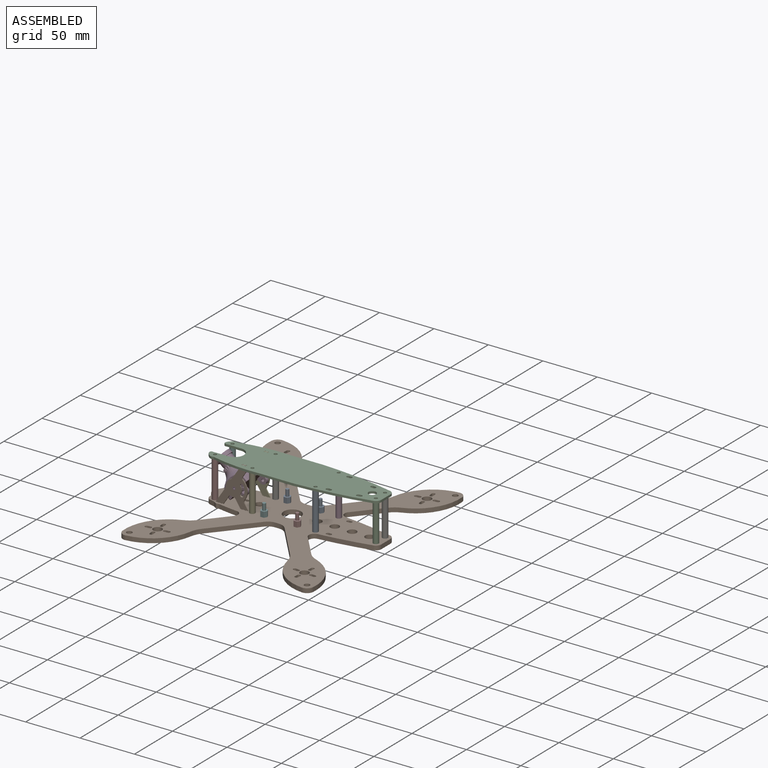
[diagram: assembled view]
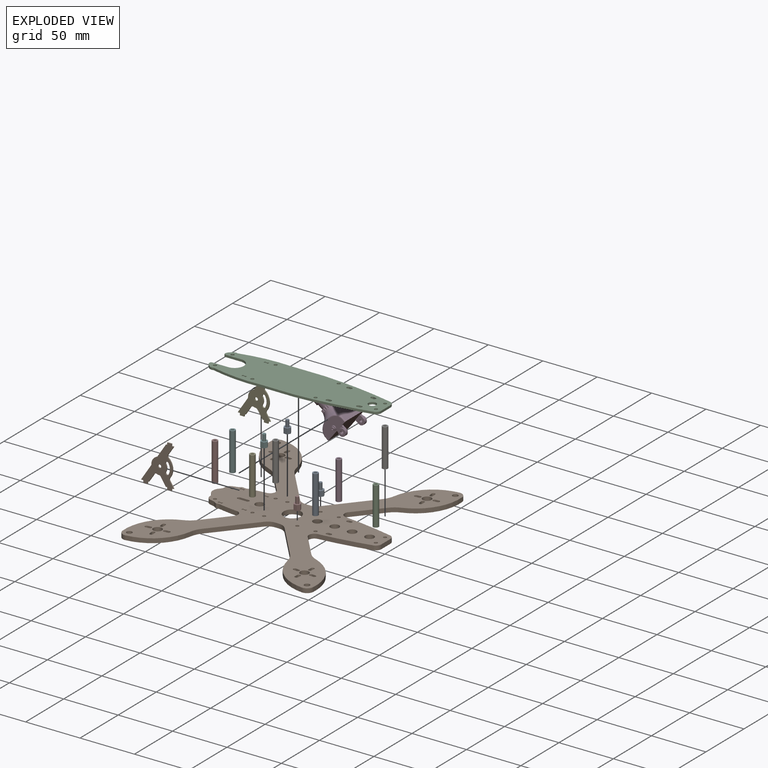
[diagram: exploded view]
GUIDED TOUR — MATED ASSEMBLY (Onshape document 0e64cf59f0e2e8e5c947b342, AutoMate assembly 0e64cf59f0e2e8e5c947b342_09d4eaabf75cbf27453308b6_e73a0a01578c468ebd3c7595_default)

This assembly has 17 components, labeled P0..P16 below (a component is one placed occurrence of a part; the same part can appear more than once), held together by 33 mates. A mate is a constraint between two components; its type names the relative motion it leaves free:
  CYLINDRICAL — leaves both rotation about and translation along the listed axis free,
  PLANAR — leaves sliding in the plane through the listed point (normal = the listed direction) and rotation about that normal free.
Axis/direction vectors are unit vectors and 'through' points are millimeter coordinates, both in the assembly's world frame.

MATES
  1. CYLINDRICAL "Cylindrical 3": P14 <-> P1, axis (0.000, 0.000, -1.000) through (-26.00, 15.25, 21.50) mm
  2. CYLINDRICAL "Cylindrical 4": P4 <-> P1, axis (0.000, 0.000, -1.000) through (-26.00, -15.25, 21.50) mm
  3. PLANAR "Planar 9": P14 <-> P1, direction (0.000, 0.000, -1.000) through (-26.00, 15.25, 4.00) mm
  4. CYLINDRICAL "Cylindrical 10": P10 <-> P6, axis (0.000, 0.000, 1.000) through (81.00, 6.00, 41.00) mm
  5. PLANAR "Planar 17": P7 <-> P1, direction (0.000, 0.000, -1.000) through (15.25, -15.25, 4.00) mm
  6. PLANAR "Planar 26": P12 <-> P3, direction (0.000, -1.000, 0.000) through (-41.80, 14.00, 18.76) mm
  7. PLANAR "Planar 7": P15 <-> P1, direction (0.000, 0.000, -1.000) through (-63.00, -11.50, 4.00) mm
  8. CYLINDRICAL "Cylindrical 5": P11 <-> P1, axis (0.000, 0.000, -1.000) through (32.00, 15.25, 21.50) mm
  9. CYLINDRICAL "Cylindrical 1": P15 <-> P1, axis (0.000, 0.000, -1.000) through (-63.00, -11.50, 4.00) mm
  10. PLANAR "Planar 27": P12 <-> P1, direction (0.000, 0.000, -1.000) through (-59.00, 14.50, 4.00) mm
  11. CYLINDRICAL "Cylindrical 12": P13 <-> P1, axis (0.000, 0.000, -1.000) through (-15.25, -15.25, 12.00) mm
  12. CYLINDRICAL "Cylindrical 8": P10 <-> P4, axis (0.000, 0.000, -1.000) through (-26.00, -15.25, 39.00) mm
  13. PLANAR "Planar 22": P9 <-> P1, direction (-1.000, 0.000, 0.000) through (-58.00, -14.50, 3.00) mm
  14. PLANAR "Planar 8": P5 <-> P1, direction (0.000, 0.000, -1.000) through (-63.00, 11.50, 4.00) mm
  15. PLANAR "Planar 19": P0 <-> P1, direction (0.000, 0.000, -1.000) through (15.25, 15.25, 4.00) mm
  16. PLANAR "Planar 18": P16 <-> P1, direction (0.000, 0.000, -1.000) through (-15.25, 15.25, 4.00) mm
  17. CYLINDRICAL "Cylindrical 9": P6 <-> P1, axis (0.000, 0.000, -1.000) through (81.00, 6.00, 21.50) mm
  18. PLANAR "Planar 23": P9 <-> P1, direction (0.000, 0.000, -1.000) through (-60.00, -14.50, 4.00) mm
  19. CYLINDRICAL "Cylindrical 11": P10 <-> P2, axis (0.000, 0.000, 1.000) through (81.00, -6.00, 41.00) mm
  20. PLANAR "Planar 13": P2 <-> P1, direction (0.000, 0.000, -1.000) through (81.00, -6.00, 4.00) mm
  21. PLANAR "Planar 25": P3 <-> P9, direction (0.000, -1.000, 0.000) through (-43.00, -14.00, 19.50) mm
  22. PLANAR "Planar 10": P4 <-> P1, direction (0.000, 0.000, -1.000) through (-26.00, -15.25, 4.00) mm
  23. PLANAR "Planar 11": P6 <-> P1, direction (0.000, 0.000, -1.000) through (81.00, 6.00, 4.00) mm
  24. PLANAR "Planar 16": P13 <-> P1, direction (0.000, 0.000, -1.000) through (-15.25, -18.00, 4.00) mm
  25. PLANAR "Planar 21": P9 <-> P1, direction (0.000, -1.000, 0.000) through (-60.00, -15.00, 4.00) mm
  26. CYLINDRICAL "Cylindrical 2": P5 <-> P1, axis (0.000, 0.000, -1.000) through (-63.00, 11.50, 21.50) mm
  27. CYLINDRICAL "Cylindrical 15": P3 <-> P9, axis (0.000, -1.000, 0.000) through (-43.00, -13.00, 19.50) mm
  28. CYLINDRICAL "Cylindrical 7": P1 <-> P8, axis (0.000, 0.000, 1.000) through (32.00, -15.25, 4.00) mm
  29. PLANAR "Planar 12": P8 <-> P1, direction (0.000, 0.000, -1.000) through (32.00, -15.25, 4.00) mm
  30. CYLINDRICAL "Cylindrical 6": P8 <-> P1, axis (0.000, 0.000, -1.000) through (32.00, -15.25, 21.50) mm
  31. PLANAR "Planar 14": P11 <-> P1, direction (0.000, 0.000, -1.000) through (32.00, 15.25, 4.00) mm
  32. CYLINDRICAL "Cylindrical 16": P12 <-> P3, axis (0.000, 1.000, 0.000) through (-43.00, 14.50, 19.50) mm
  33. PLANAR "Planar 15": P10 <-> P2, direction (0.000, 0.000, -1.000) through (32.00, 15.25, 39.00) mm

ASSEMBLY ORDER
  1. P8 — the base component [order verified]
  2. P2 [order verified]
  3. P6 [order verified]
  4. P4 [order verified]
  5. P14 [order verified]
  6. P11 [order verified]
  7. P3 [order verified]
  8. P10 [order verified]
  9. P1 [order verified]
  10. P9 [order verified]
  11. P12 [order verified]
  12. P16 [order verified]
  13. P15 [order verified]
  14. P13 [order verified]
  15. P7 [order verified]
  16. P0 [order verified]
  17. P5 [order verified]
Order-tag legend:
  [order verified] — this step's position reverses a verified removal order: the component was checked to insert without passing through the ones already placed.

Of the 17 components, 16 carry the full construction recipe — the FeatureScript program that regenerates the part's solid from scratch; the rest are supplied as boundary geometry only.
Because this assembly has more than 12 components, the tour below covers the 12 most significant ones individually (every recipe-attached component first, then the largest by part volume), in assembly order; the remaining 5 are summarized together in a grouped section at the end.
Each toured component is shown spotlighted twice — in the assembled view, then in the exploded view, where a leader line traces a displaced component back to its assembled socket (saturated green if recipe-attached, orange if geometry-only; every other component desaturated gray) — followed by its recipe or geometry summary and the mates that hold it.
NOTE — document 2 of 2 of this assembly tour. The two overview renders and the header above are repeated from document 1; the component sections below continue where the previous document stopped.
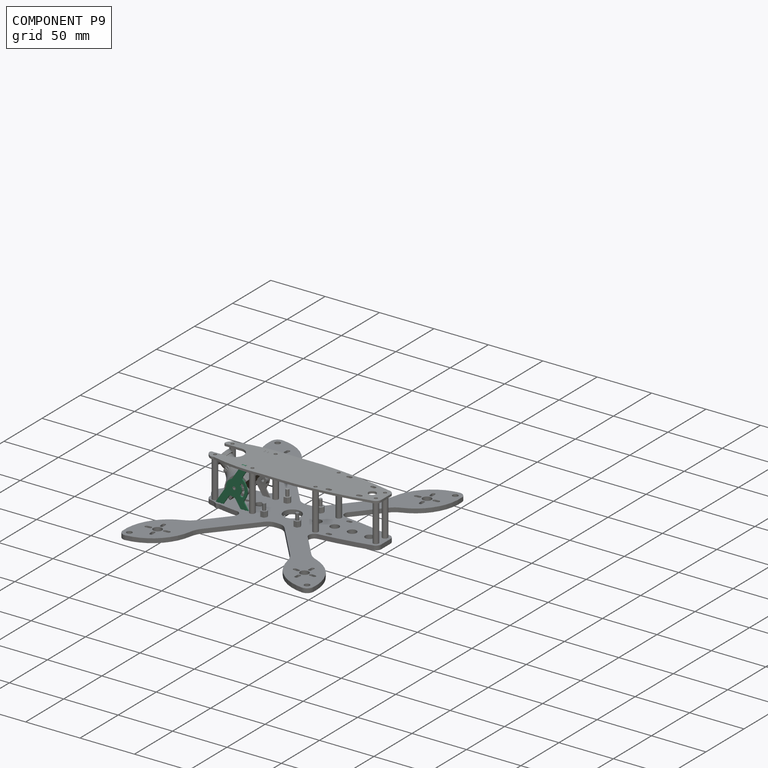
[diagram: component P9 — assembled]
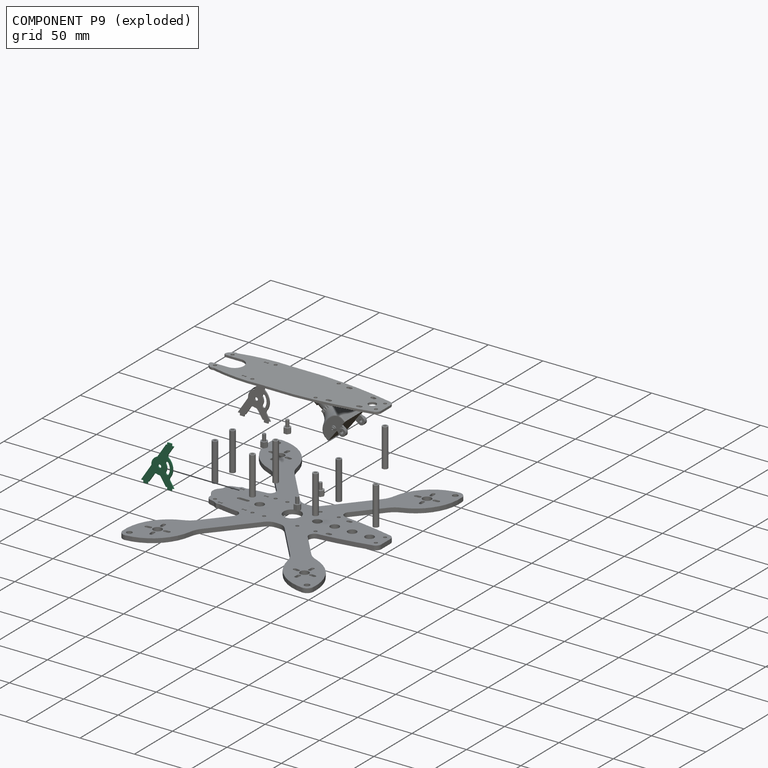
[diagram: component P9 — exploded]
COMPONENT P9 — recipe-attached (CADFS 00147420, mesh-verified: the recipe's output STEP matches this component's geometry to below the mesh-comparison resolution (tessellation chordal tolerance ~0.0738 mm)).
Held by: PLANAR mate "Planar 22" to P1; PLANAR mate "Planar 23" to P1; PLANAR mate "Planar 25" to P3; PLANAR mate "Planar 21" to P1; CYLINDRICAL mate "Cylindrical 15" to P3.
Construction recipe (FeatureScript — the CAD program that rebuilds this solid; sketch coordinates are in the units given by the * unit suffixes, e.g. mm):

FeatureScript 1511;
import(path : "onshape/std/geometry.fs", version : "1511.0");
import(path : "onshape/std/common.fs", version : "1511.0");
const mm = millimeter;
const VERTEX = EntityType.VERTEX;
const EDGE = EntityType.EDGE;
const FACE = EntityType.FACE;
const BODY = EntityType.BODY;
function v(x, y){return vector(x, y);}
function OD(order){return orderDisambiguation(order);}
function OSD(set){return originalSetDisambiguation(set);}
function TD(topology){return topologyDisambiguation(topology);}
function TDD(query){return trueDependencyDisambiguation(query);}
function sQuery(a, b, c) {return sketchEntityQuery(a, b, c);}

annotation { "Feature Type Name" : "Feature", "Feature Type Description" : "" }
export const myFeature = defineFeature(function(context is Context, id is Id, definition is map)
    precondition{}
    {
        {
            var Q0;
            Q0=qCreatedBy(makeId("Front.planeOp"),FACE);
            var sketch = newSketch(context, id + "F0", { "sketchPlane" : qUnion([Q0])});
            skLineSegment(sketch, "E0.bottom", {"start": v(7.84, 17.5) * mm, "end": v(9, 17.5) * mm});
            skLineSegment(sketch, "E0.top", {"start": v(-15, -17.5) * mm, "end": v(-13, -17.5) * mm});
            skLineSegment(sketch, "E1", {"start": v(15, 17.5) * mm, "end": v(8.75, 7.92) * mm});
            skLineSegment(sketch, "E2", {"start": v(-15, -17.5) * mm, "end": v(-5.45, -2.86) * mm});
            skLineSegment(sketch, "E3.trimOffspring", {"start": v(-1.9, -8.4) * mm, "end": v(-7.84, -17.5) * mm});
            skLineSegment(sketch, "E4.trimOffspring", {"start": v(2.6, -9.48) * mm, "end": v(7.84, -17.5) * mm});
            skLineSegment(sketch, "E5.trimOffspring", {"start": v(-0.21, 5.17) * mm, "end": v(7.84, 17.5) * mm});
            skLineSegment(sketch, "E6.trimOffspring", {"start": v(10.45, -10.52) * mm, "end": v(15, -17.5) * mm});
            skLineSegment(sketch, "E7.trimOffspring", {"start": v(7.84, -17.5) * mm, "end": v(9, -17.5) * mm});
            skLineSegment(sketch, "E8.top", {"start": v(13, 19.5) * mm, "end": v(9, 19.5) * mm});
            skLineSegment(sketch, "E8.left", {"start": v(13, 17.5) * mm, "end": v(13, 19.5) * mm});
            skLineSegment(sketch, "E8.right", {"start": v(9, 17.5) * mm, "end": v(9, 19.5) * mm});
            skLineSegment(sketch, "E9.top", {"start": v(-13, -19.5) * mm, "end": v(-9, -19.5) * mm});
            skLineSegment(sketch, "E9.left", {"start": v(-13, -17.5) * mm, "end": v(-13, -19.5) * mm});
            skLineSegment(sketch, "E9.right", {"start": v(-9, -17.5) * mm, "end": v(-9, -19.5) * mm});
            skLineSegment(sketch, "E10.top", {"start": v(9, -19.5) * mm, "end": v(13, -19.5) * mm});
            skLineSegment(sketch, "E10.left", {"start": v(9, -17.5) * mm, "end": v(9, -19.5) * mm});
            skLineSegment(sketch, "E10.right", {"start": v(13, -17.5) * mm, "end": v(13, -19.5) * mm});
            skLineSegment(sketch, "E11.trimOffspring", {"start": v(-9, -17.5) * mm, "end": v(-7.84, -17.5) * mm});
            skLineSegment(sketch, "E12.trimOffspring", {"start": v(13, -17.5) * mm, "end": v(15, -17.5) * mm});
            skLineSegment(sketch, "E13.trimOffspring", {"start": v(13, 17.5) * mm, "end": v(15, 17.5) * mm});
            skCircle(sketch, "E14", {"center": v(2, -2) * mm, "radius": 1.5 * mm});
            skArc(sketch, "E15", {"start": v(10.45, -10.52) * mm, "mid": v(13.95, -0.9) * mm, "end": v(8.75, 7.92) * mm});
            skArc(sketch, "E16", {"start": v(-0.21, 5.17) * mm, "mid": v(-4.28, 2.1) * mm, "end": v(-5.45, -2.86) * mm});
            skArc(sketch, "E17.trimOffspring", {"start": v(-1.9, -8.4) * mm, "mid": v(0.26, -9.3) * mm, "end": v(2.6, -9.48) * mm});
            skLineSegment(sketch, "E18", {"start": v(2, -2) * mm, "end": v(14, -2) * mm, "construction": true});
            skLineSegment(sketch, "E19", {"start": v(2, -2) * mm, "end": v(9, 2) * mm, "construction": true});
            skLineSegment(sketch, "E20", {"start": v(2, -2) * mm, "end": v(8.96, -6.06) * mm, "construction": true});
            skArc(sketch, "E21", {"start": v(10.5, 1.92) * mm, "mid": v(8.37, 3.36) * mm, "end": v(8.1, 0.8) * mm});
            skCircle(sketch, "E22", {"center": v(2, -2) * mm, "radius": 8.06 * mm, "construction": true});
            skLineSegment(sketch, "E23", {"start": v(2, -2) * mm, "end": v(9.59, 0.72) * mm, "construction": true});
            skLineSegment(sketch, "E24", {"start": v(2, -2) * mm, "end": v(9.95, -0.64) * mm, "construction": true});
            skLineSegment(sketch, "E25", {"start": v(2, -2) * mm, "end": v(10.06, -2.04) * mm, "construction": true});
            skArc(sketch, "E26", {"start": v(8.68, -1.45) * mm, "mid": v(8.56, -2.03) * mm, "end": v(8.68, -2.61) * mm});
            skArc(sketch, "E27", {"start": v(8.49, -0.3) * mm, "mid": v(8.47, -0.89) * mm, "end": v(8.68, -1.45) * mm});
            skArc(sketch, "E28", {"start": v(8.1, 0.8) * mm, "mid": v(8.18, 0.22) * mm, "end": v(8.49, -0.3) * mm});
            skArc(sketch, "E29.trimOffspring", {"start": v(11.05, 0.38) * mm, "mid": v(11, 1.23) * mm, "end": v(10.5, 1.92) * mm});
            skArc(sketch, "E30.trimOffspring", {"start": v(11.32, -1.23) * mm, "mid": v(11.42, -0.38) * mm, "end": v(11.05, 0.38) * mm});
            skLineSegment(sketch, "E31", {"start": v(2, -2) * mm, "end": v(9.56, -4.8) * mm, "construction": true});
            skLineSegment(sketch, "E32", {"start": v(2, -2) * mm, "end": v(9.93, -3.44) * mm, "construction": true});
            skArc(sketch, "E33", {"start": v(8.47, -3.76) * mm, "mid": v(8.16, -4.27) * mm, "end": v(8.07, -4.86) * mm});
            skArc(sketch, "E34", {"start": v(8.07, -4.86) * mm, "mid": v(8.32, -7.42) * mm, "end": v(10.46, -6) * mm});
            skArc(sketch, "E35.trimOffspring", {"start": v(11.32, -2.86) * mm, "mid": v(11.56, -2.04) * mm, "end": v(11.32, -1.23) * mm});
            skArc(sketch, "E36.trimOffspring", {"start": v(11.03, -4.46) * mm, "mid": v(11.4, -3.7) * mm, "end": v(11.32, -2.86) * mm});
            skArc(sketch, "E37.trimOffspring", {"start": v(10.46, -6) * mm, "mid": v(10.97, -5.31) * mm, "end": v(11.03, -4.46) * mm});
            skArc(sketch, "E38.trimOffspring", {"start": v(8.68, -2.61) * mm, "mid": v(8.46, -3.17) * mm, "end": v(8.47, -3.76) * mm});
            skSolve(sketch);
        }
        {
            var Q0;
            Q0 = qSketchRegion(id + "F0", true);
            extrude(context, id + "F1", {"entities" : qUnion([Q0]), "depth" : 1 * mm});
        }
        {
            var Q0;
            Q0=makeQuery(id+"F1.opExtrude","SWEPT_EDGE",EDGE,{"disambiguationData":[OSD([sQuery(id+"F0.wireOp",EDGE,"E3.trimOffspring"),sQuery(id+"F0.wireOp",EDGE,"E17.trimOffspring")])]});
            var Q1;
            Q1=makeQuery(id+"F1.opExtrude","SWEPT_EDGE",EDGE,{"disambiguationData":[OSD([sQuery(id+"F0.wireOp",EDGE,"E4.trimOffspring"),sQuery(id+"F0.wireOp",EDGE,"E17.trimOffspring")])]});
            var Q2;
            Q2=makeQuery(id+"F1.opExtrude","SWEPT_EDGE",EDGE,{"disambiguationData":[OSD([sQuery(id+"F0.wireOp",EDGE,"E6.trimOffspring"),sQuery(id+"F0.wireOp",EDGE,"E15")])]});
            var Q3;
            Q3=makeQuery(id+"F1.opExtrude","SWEPT_EDGE",EDGE,{"disambiguationData":[OSD([sQuery(id+"F0.wireOp",EDGE,"E1"),sQuery(id+"F0.wireOp",EDGE,"E15")])]});
            var Q4;
            Q4=makeQuery(id+"F1.opExtrude","SWEPT_EDGE",EDGE,{"disambiguationData":[OSD([sQuery(id+"F0.wireOp",EDGE,"E5.trimOffspring"),sQuery(id+"F0.wireOp",EDGE,"E16")])]});
            var Q5;
            Q5=makeQuery(id+"F1.opExtrude","SWEPT_EDGE",EDGE,{"disambiguationData":[OSD([sQuery(id+"F0.wireOp",EDGE,"E2"),sQuery(id+"F0.wireOp",EDGE,"E16")])]});
            fillet(context, id + "F2", {"entities" : qUnion([Q0, Q1, Q2, Q3, Q4, Q5]), "radius" : 2 * mm, "tangentPropagation" : true, "allowEdgeOverflow" : false});
        }
    });
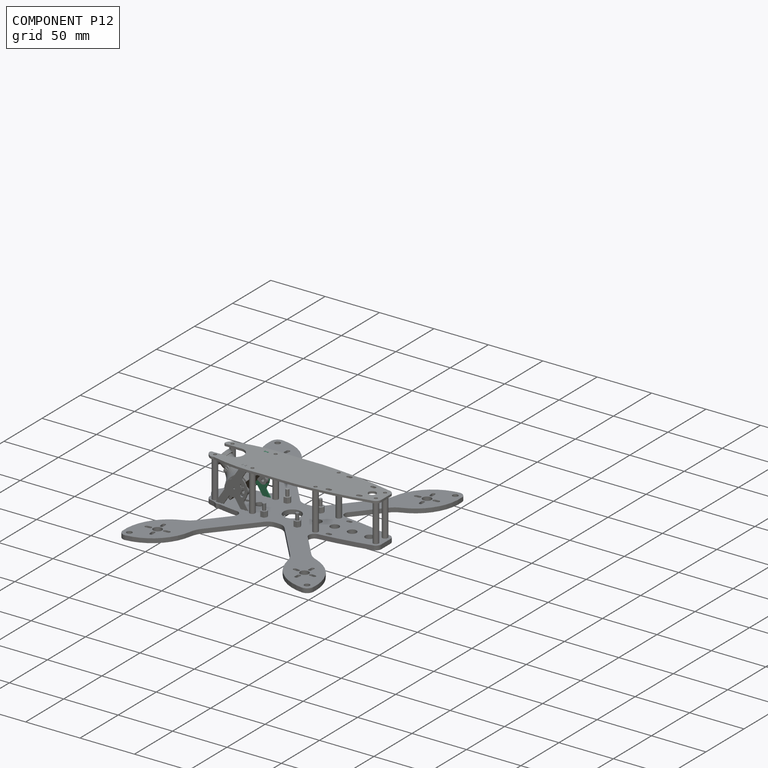
[diagram: component P12 — assembled]
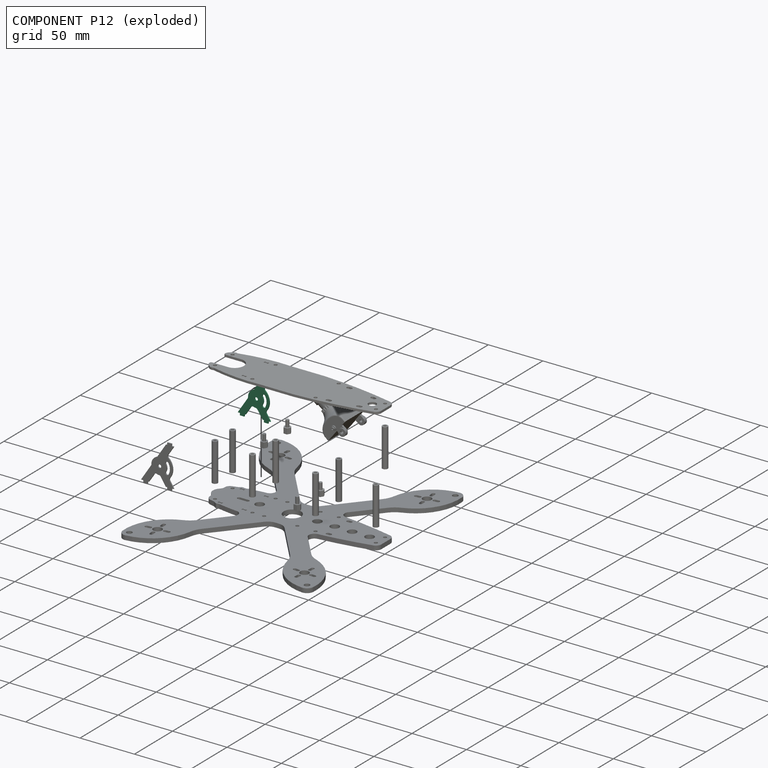
[diagram: component P12 — exploded]
COMPONENT P12 — same part as P9 (CADFS 00147420); its construction recipe is shown at P9.
Held by: PLANAR mate "Planar 26" to P3; PLANAR mate "Planar 27" to P1; CYLINDRICAL mate "Cylindrical 16" to P3.
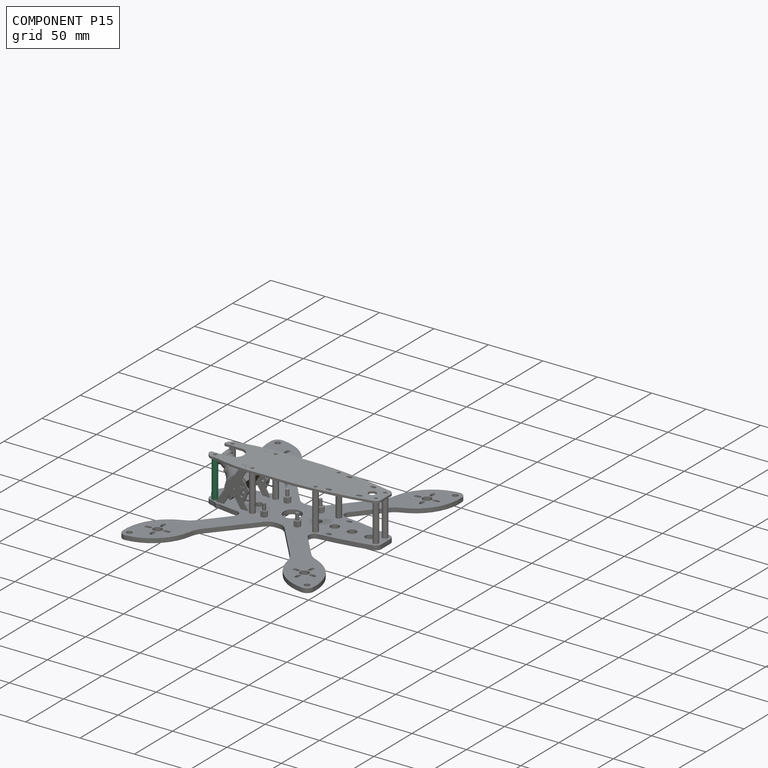
[diagram: component P15 — assembled]
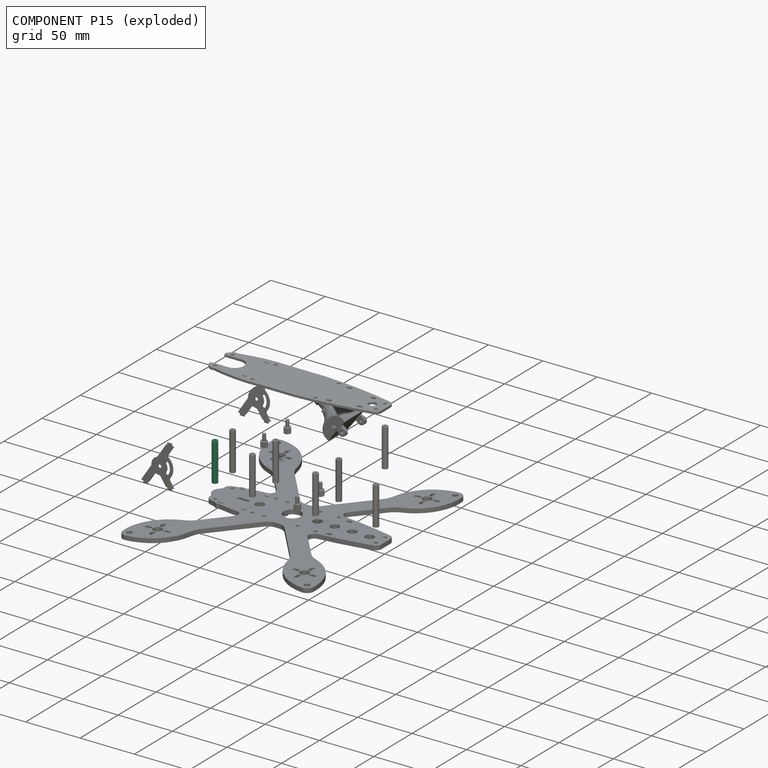
[diagram: component P15 — exploded]
COMPONENT P15 — same part as P2 (CADFS 00147421); its construction recipe is shown at P2.
Held by: PLANAR mate "Planar 7" to P1; CYLINDRICAL mate "Cylindrical 1" to P1.
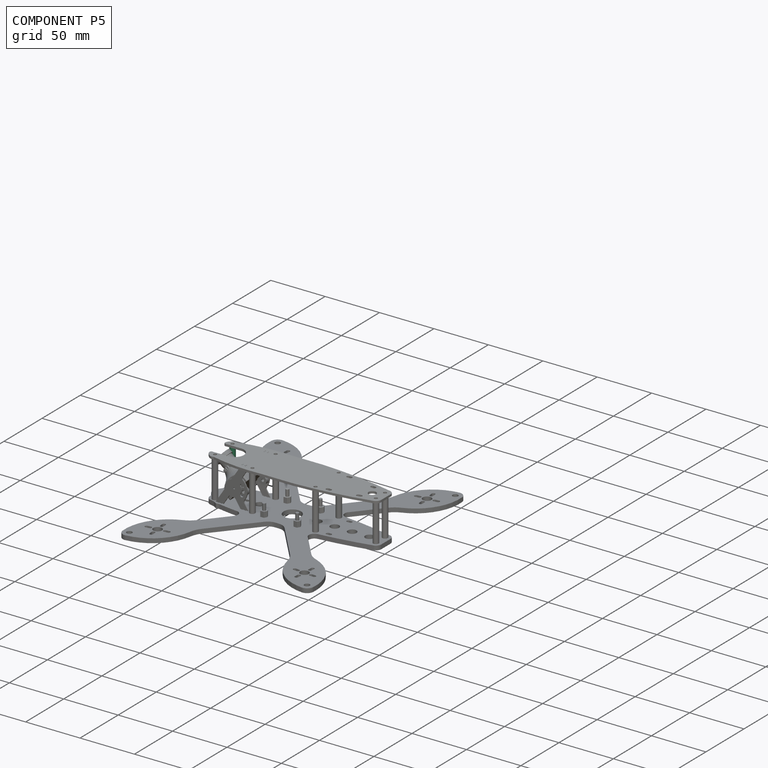
[diagram: component P5 — assembled]
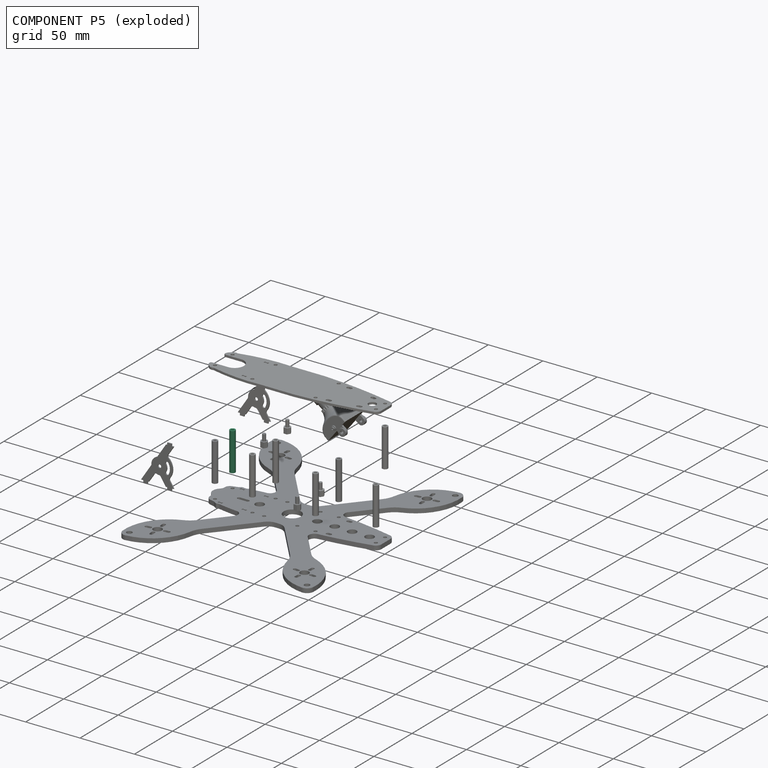
[diagram: component P5 — exploded]
COMPONENT P5 — same part as P2 (CADFS 00147421); its construction recipe is shown at P2.
Held by: PLANAR mate "Planar 8" to P1; CYLINDRICAL mate "Cylindrical 2" to P1.
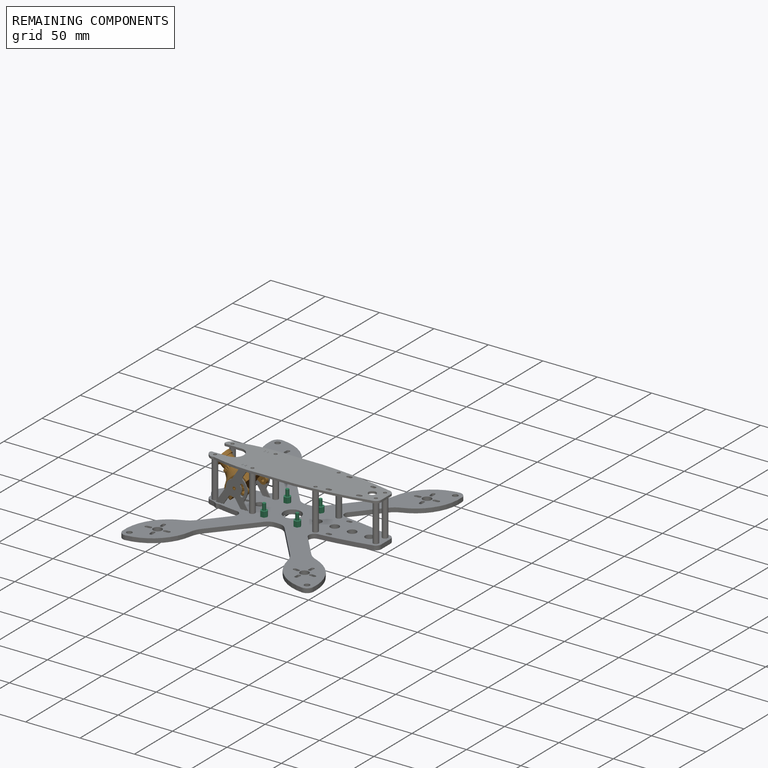
[diagram: remaining components — assembled]
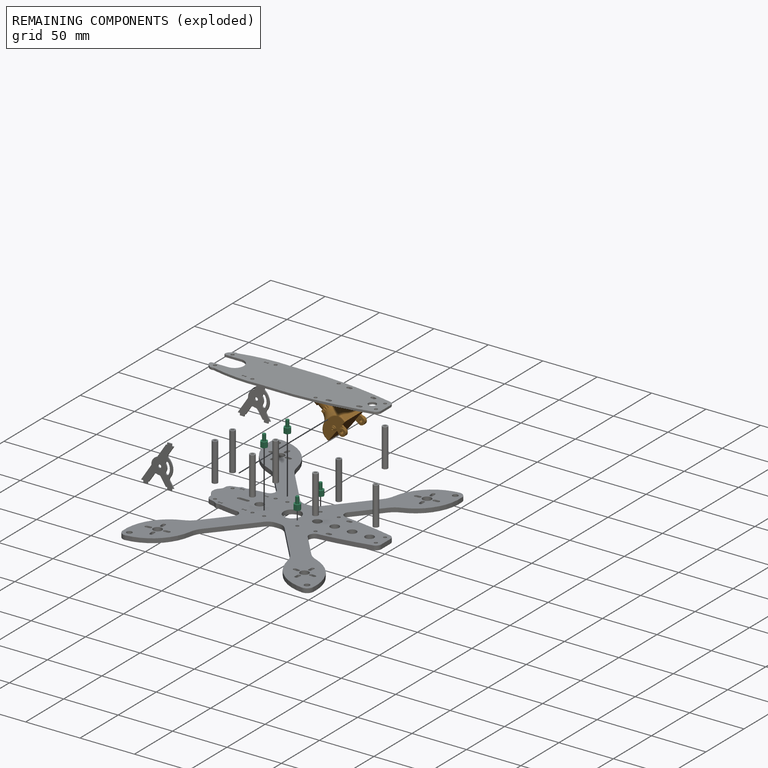
[diagram: remaining components — exploded]
REMAINING COMPONENTS (grouped) — the 5 components below fall outside the per-component tour by the significance rule stated above; both spotlight views highlight the whole group.
  P3: bounding box 37.6 x 37.6 x 37.3 mm, volume 11423 mm^3. Held by: PLANAR mate "Planar 26" to P12; PLANAR mate "Planar 25" to P9; CYLINDRICAL mate "Cylindrical 15" to P9; CYLINDRICAL mate "Cylindrical 16" to P12.
  P16: bounding box 11.0 x 6.4 x 5.5 mm, volume 154 mm^3. Recipe-attached (CADFS 00147422; recipe not printed under the significance rule). Held by: PLANAR mate "Planar 18" to P1.
  P13: bounding box 11.0 x 6.4 x 5.5 mm, volume 154 mm^3. Recipe-attached (CADFS 00147422; recipe not printed under the significance rule). Held by: CYLINDRICAL mate "Cylindrical 12" to P1; PLANAR mate "Planar 16" to P1.
  P7: bounding box 11.0 x 6.4 x 5.5 mm, volume 154 mm^3. Recipe-attached (CADFS 00147422; recipe not printed under the significance rule). Held by: PLANAR mate "Planar 17" to P1.
  P0: bounding box 11.0 x 6.4 x 5.5 mm, volume 154 mm^3. Recipe-attached (CADFS 00147422; recipe not printed under the significance rule). Held by: PLANAR mate "Planar 19" to P1.
PROVENANCE & LICENSES
Assembly (occurrences, transforms, mates, per-part STEP geometry): AutoMate dataset, Zenodo record 7776208, CC0.
Construction recipes: CADFS (HuggingFace VladPyatov/CADFS, CC-BY-4.0, layered over the ABC dataset), FeatureScript reconstruction programs keyed by ABC model id.
Join: ABC meta listings map ABC model id -> Onshape documentId; within a shared document, parts are matched by geometric signature (bounding-box dims + volume at 0.1% relative tolerance, exact B-rep face/solid counts).
Verification: 16 of this assembly's 17 components carry a recipe attachment, and every attachment is mesh-verified: the CADFS STEP and the AutoMate member STEP were compared as meshes in their shared local frame (symmetric sampled-point-to-mesh distance); worst across the 16 attachments: below the mesh-comparison resolution (tessellation chordal tolerance ~0.407 mm) on a 271 mm part.
Renders: orthographic iso camera (az 35 / el 25); the floor grid conveys scale (grid pitch printed in each image; no ruler). In the exploded view each component is displaced by its stored offset vector: the offsets alone carry the explosion direction (mate normal/axis signs are not orientation cues and do not encode it), and separation distances are assigned per mate-chain, not proportionally to assembly-order depth.
